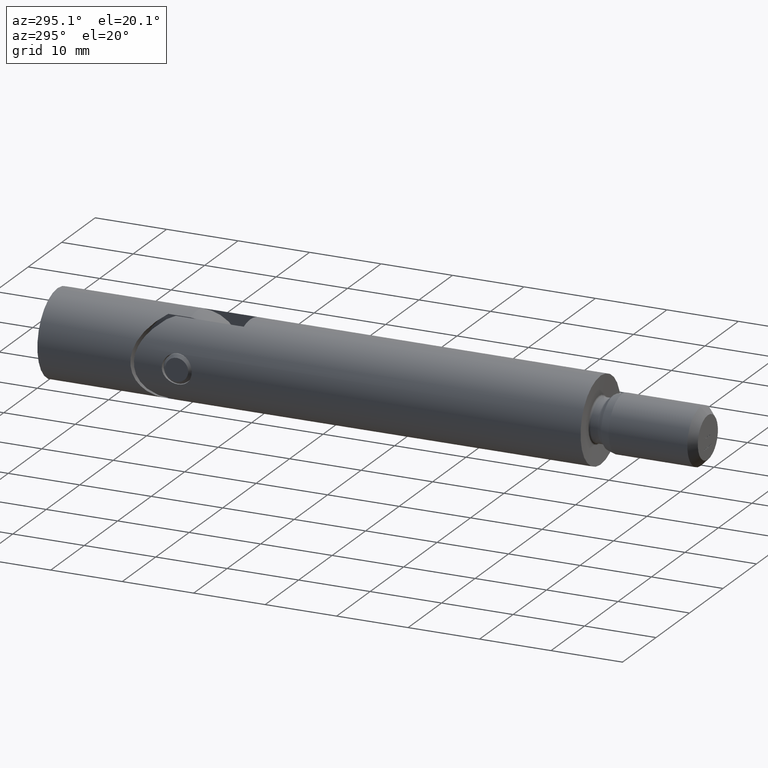
[diagram: clean part render]
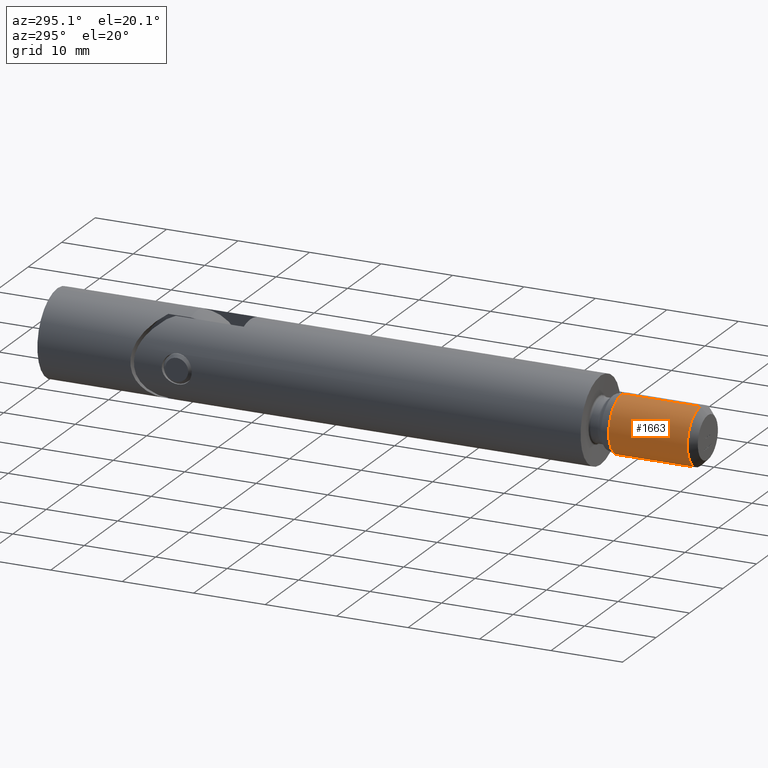
[diagram: same view with one face highlighted and labeled with its STEP entity id]
A machine part, auxiliary view. The second image highlights one B-rep face of the part: STEP entity #1663.
In plain terms, the highlighted cylindrical surface (edge-blend (fillet) strip) has radius 4 mm, axis along (-0, -1, -0).
Its self-contained STEP definition (entity closure, byte-faithful):
#780 = VERTEX_POINT ( 'NONE', #16134 ) ;
#1182 = FACE_OUTER_BOUND ( 'NONE', #2811, .T. ) ;
#1337 = CARTESIAN_POINT ( 'NONE',  ( 0.0000000000000000000, 0.0000000000000000000, -4.000000000000000900 ) ) ;
#1523 = DIRECTION ( 'NONE',  ( -0.0000000000000000000, -1.000000000000000000, -0.0000000000000000000 ) ) ;
#1663 = ADVANCED_FACE ( 'NONE', ( #1182 ), #15021, .T. ) ;
#2207 = AXIS2_PLACEMENT_3D ( 'NONE', #3081, #8557, #10941 ) ;
#2243 = ORIENTED_EDGE ( 'NONE', *, *, #6007, .F. ) ;
#2480 = CARTESIAN_POINT ( 'NONE',  ( 4.898587196589413800E-016, 0.0000000000000000000, 4.000000000000000900 ) ) ;
#2667 = CARTESIAN_POINT ( 'NONE',  ( 0.0000000000000000000, -13.99999999999999800, 0.0000000000000000000 ) ) ;
#2811 = EDGE_LOOP ( 'NONE', ( #2243, #16026, #3287, #10427 ) ) ;
#3081 = CARTESIAN_POINT ( 'NONE',  ( 0.0000000000000000000, -2.999999999999999100, 0.0000000000000000000 ) ) ;
#3287 = ORIENTED_EDGE ( 'NONE', *, *, #4016, .T. ) ;
#4016 = EDGE_CURVE ( 'NONE', #7016, #780, #10387, .T. ) ;
#5248 = EDGE_CURVE ( 'NONE', #10058, #780, #15989, .T. ) ;
#5287 = DIRECTION ( 'NONE',  ( 0.0000000000000000000, 0.0000000000000000000, -1.000000000000000000 ) ) ;
#6007 = EDGE_CURVE ( 'NONE', #14611, #10058, #14574, .T. ) ;
#6287 = AXIS2_PLACEMENT_3D ( 'NONE', #2667, #1523, #5287 ) ;
#6298 = DIRECTION ( 'NONE',  ( -0.0000000000000000000, -1.000000000000000000, -0.0000000000000000000 ) ) ;
#6419 = DIRECTION ( 'NONE',  ( -0.0000000000000000000, -1.000000000000000000, -0.0000000000000000000 ) ) ;
#7016 = VERTEX_POINT ( 'NONE', #16828 ) ;
#7639 = EDGE_CURVE ( 'NONE', #14611, #7016, #10611, .T. ) ;
#7647 = DIRECTION ( 'NONE',  ( -0.0000000000000000000, -1.000000000000000000, -0.0000000000000000000 ) ) ;
#8505 = VECTOR ( 'NONE', #6298, 1000.000000000000000 ) ;
#8557 = DIRECTION ( 'NONE',  ( -0.0000000000000000000, -1.000000000000000000, -0.0000000000000000000 ) ) ;
#10058 = VERTEX_POINT ( 'NONE', #13350 ) ;
#10387 = LINE ( 'NONE', #1337, #12772 ) ;
#10427 = ORIENTED_EDGE ( 'NONE', *, *, #5248, .F. ) ;
#10597 = CARTESIAN_POINT ( 'NONE',  ( 4.898587196589413800E-016, -2.999999999999999100, 4.000000000000000000 ) ) ;
#10611 = CIRCLE ( 'NONE', #2207, 4.000000000000000000 ) ;
#10941 = DIRECTION ( 'NONE',  ( 0.0000000000000000000, 0.0000000000000000000, -1.000000000000000000 ) ) ;
#11359 = AXIS2_PLACEMENT_3D ( 'NONE', #12881, #6419, #15474 ) ;
#12772 = VECTOR ( 'NONE', #7647, 1000.000000000000000 ) ;
#12881 = CARTESIAN_POINT ( 'NONE',  ( 0.0000000000000000000, 0.0000000000000000000, 0.0000000000000000000 ) ) ;
#13350 = CARTESIAN_POINT ( 'NONE',  ( 0.0000000000000000000, -13.99999999999999800, 4.000000000000000000 ) ) ;
#14574 = LINE ( 'NONE', #2480, #8505 ) ;
#14611 = VERTEX_POINT ( 'NONE', #10597 ) ;
#15021 = CYLINDRICAL_SURFACE ( 'NONE', #11359, 4.000000000000000900 ) ;
#15474 = DIRECTION ( 'NONE',  ( 0.0000000000000000000, 0.0000000000000000000, -1.000000000000000000 ) ) ;
#15989 = CIRCLE ( 'NONE', #6287, 4.000000000000001800 ) ;
#16026 = ORIENTED_EDGE ( 'NONE', *, *, #7639, .T. ) ;
#16134 = CARTESIAN_POINT ( 'NONE',  ( 4.898587196589412800E-016, -13.99999999999999800, -4.000000000000000000 ) ) ;
#16828 = CARTESIAN_POINT ( 'NONE',  ( 0.0000000000000000000, -2.999999999999999100, -4.000000000000000000 ) ) ;